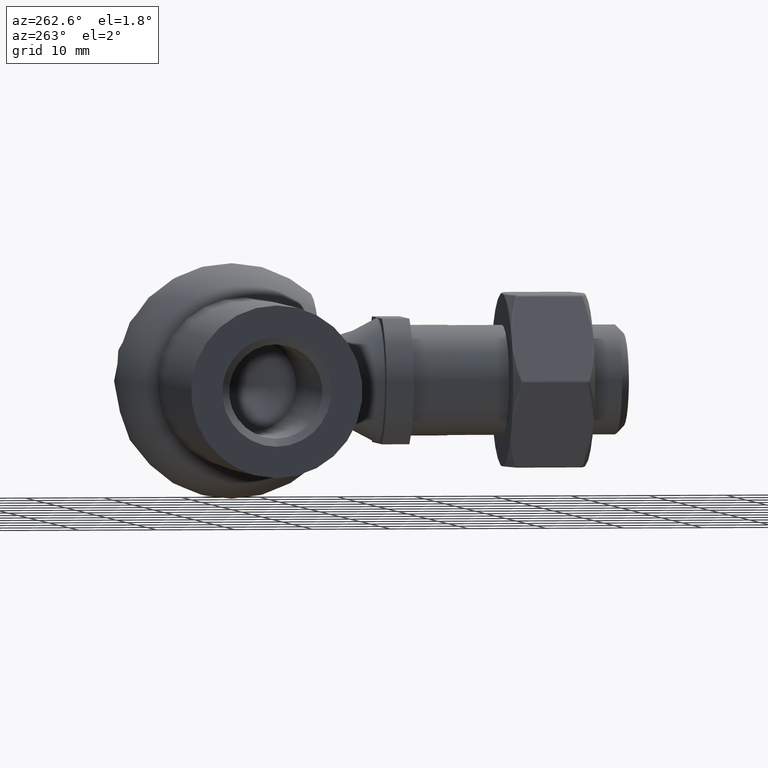
[diagram: clean part render]
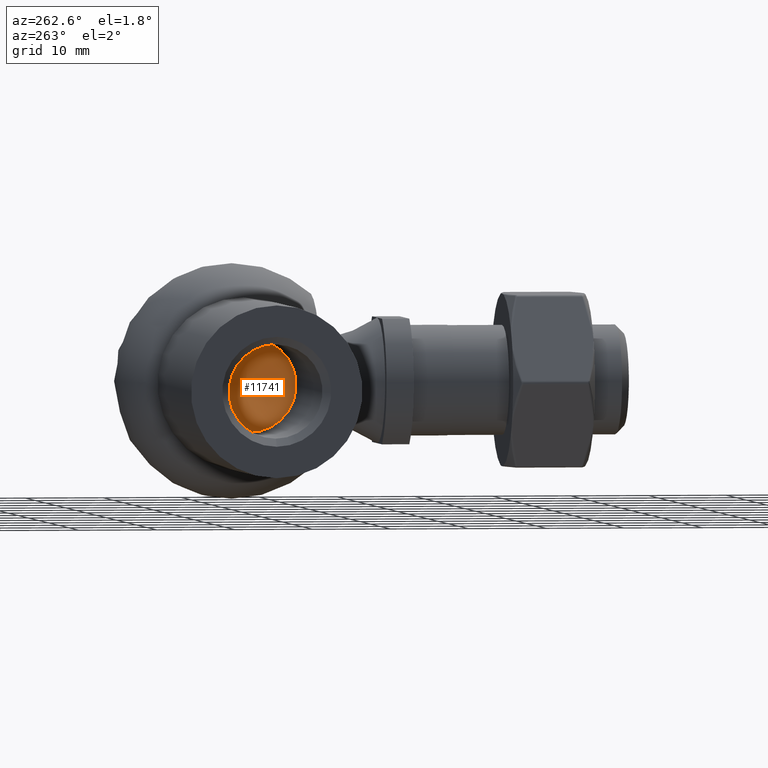
[diagram: same view with one face highlighted and labeled with its STEP entity id]
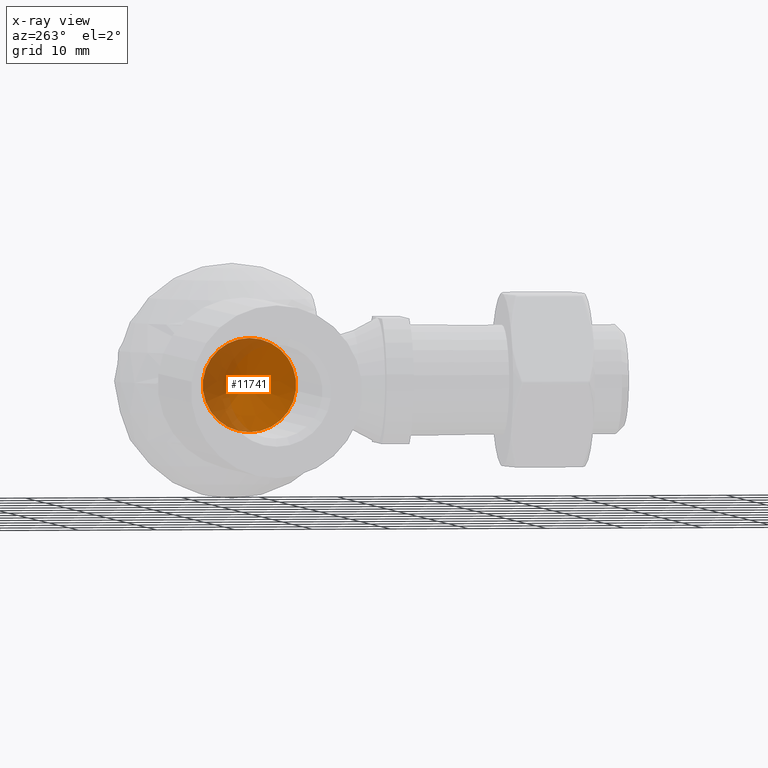
[diagram: x-ray of the same camera — body ghosted, the highlighted face saturated]
A machine part, auxiliary view. The second image highlights one B-rep face of the part: STEP entity #11741.
The next image is the same camera in x-ray: the body ghosted, the highlighted face saturated — about 37% of this face is hidden behind the body in this view.
In plain terms, the highlighted conical surface has half-angle 59 deg.
Its self-contained STEP definition (entity closure, byte-faithful):
#24 = FACE_OUTER_BOUND ( 'NONE', #9611, .T. ) ;
#279 = CONICAL_SURFACE ( 'NONE', #9077, 5.999999999999992895, 1.029744258676653201 ) ;
#469 = CARTESIAN_POINT ( 'NONE',  ( -17.49999999999999645, 0.000000000000000000, 0.000000000000000000 ) ) ;
#1733 = DIRECTION ( 'NONE',  ( -1.000000000000000000, -0.000000000000000000, -0.000000000000000000 ) ) ;
#2316 = EDGE_CURVE ( 'NONE', #15331, #15331, #2933, .T. ) ;
#2933 = CIRCLE ( 'NONE', #16521, 5.999999999999992895 ) ;
#3630 = CARTESIAN_POINT ( 'NONE',  ( -17.49999999999999645, 0.000000000000000000, 0.000000000000000000 ) ) ;
#8295 = DIRECTION ( 'NONE',  ( -1.000000000000000000, -0.000000000000000000, -0.000000000000000000 ) ) ;
#8357 = CARTESIAN_POINT ( 'NONE',  ( -17.49999999999999645, 0.000000000000000000, 5.999999999999992895 ) ) ;
#9077 = AXIS2_PLACEMENT_3D ( 'NONE', #3630, #8295, #14370 ) ;
#9387 = DIRECTION ( 'NONE',  ( 0.000000000000000000, 0.000000000000000000, 1.000000000000000000 ) ) ;
#9611 = EDGE_LOOP ( 'NONE', ( #15777 ) ) ;
#11741 = ADVANCED_FACE ( 'NONE', ( #24 ), #279, .F. ) ;
#14370 = DIRECTION ( 'NONE',  ( 0.000000000000000000, 0.000000000000000000, 1.000000000000000000 ) ) ;
#15331 = VERTEX_POINT ( 'NONE', #8357 ) ;
#15777 = ORIENTED_EDGE ( 'NONE', *, *, #2316, .T. ) ;
#16521 = AXIS2_PLACEMENT_3D ( 'NONE', #469, #1733, #9387 ) ;